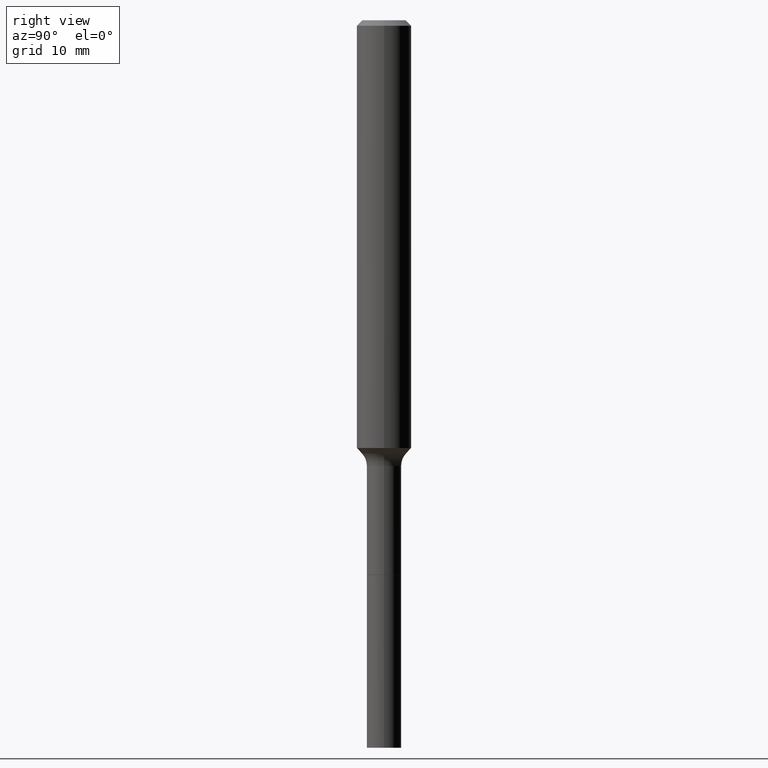
[diagram: clean part render]
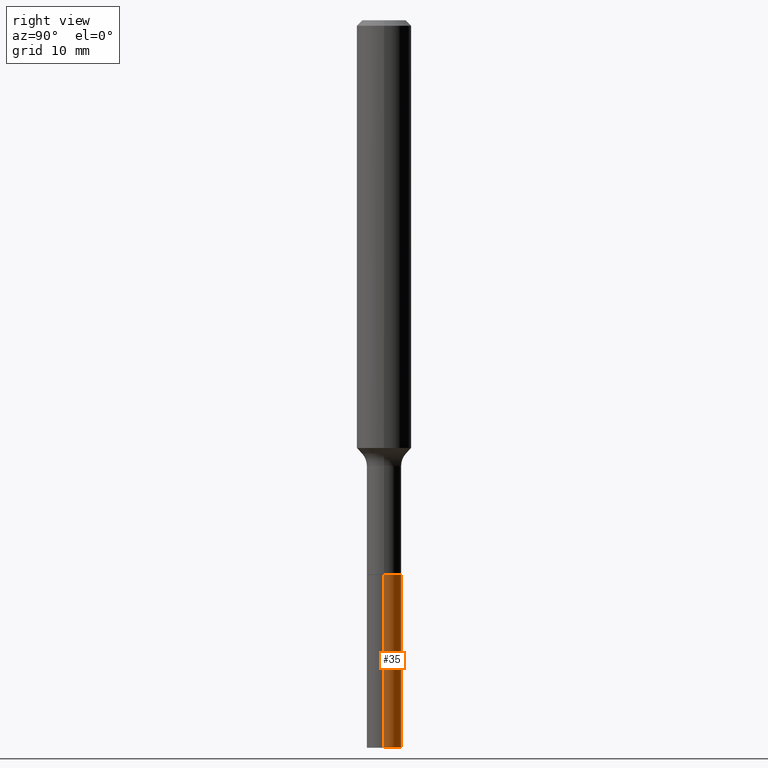
[diagram: same view with one face highlighted and labeled with its STEP entity id]
A machine part, right view. The second image highlights one B-rep face of the part: STEP entity #35.
In plain terms, the highlighted cylindrical surface (edge-blend (fillet) strip) has radius 1.8999 mm, axis along (-0, 0, 1).
Its self-contained STEP definition (entity closure, byte-faithful):
#3 = EDGE_CURVE ( 'NONE', #36, #151, #460, .T. ) ;
#35 = ADVANCED_FACE ( 'NONE', ( #92 ), #237, .T. ) ;
#36 = VERTEX_POINT ( 'NONE', #248 ) ;
#42 = CARTESIAN_POINT ( 'NONE',  ( -0.07480000000000010252, -7.853655617017142483E-15, -2.401600000000000179 ) ) ;
#90 = DIRECTION ( 'NONE',  ( -2.445468806185136877E-29, 3.491481338843145188E-15, 1.000000000000000000 ) ) ;
#92 = FACE_OUTER_BOUND ( 'NONE', #473, .T. ) ;
#96 = DIRECTION ( 'NONE',  ( -2.445468806185136597E-29, 3.491481338843145583E-15, 1.000000000000000000 ) ) ;
#98 = DIRECTION ( 'NONE',  ( -2.445468806185136597E-29, 3.491481338843145583E-15, 1.000000000000000000 ) ) ;
#151 = VERTEX_POINT ( 'NONE', #252 ) ;
#164 = AXIS2_PLACEMENT_3D ( 'NONE', #208, #96, #403 ) ;
#174 = CARTESIAN_POINT ( 'NONE',  ( 5.873037884934224349E-29, -8.385141583365698841E-15, -2.401600000000000179 ) ) ;
#187 = EDGE_CURVE ( 'NONE', #487, #36, #449, .T. ) ;
#188 = CARTESIAN_POINT ( 'NONE',  ( -0.07480000000000019966, -9.159469637744476062E-15, -3.149600000000000399 ) ) ;
#208 = CARTESIAN_POINT ( 'NONE',  ( 5.873037884934224349E-29, -8.385141583365698841E-15, -2.401600000000000179 ) ) ;
#225 = AXIS2_PLACEMENT_3D ( 'NONE', #295, #98, #256 ) ;
#237 = CYLINDRICAL_SURFACE ( 'NONE', #348, 0.07480000000000010252 ) ;
#248 = CARTESIAN_POINT ( 'NONE',  ( 0.07480000000000000537, -8.907467191656631641E-15, -2.401600000000000179 ) ) ;
#252 = CARTESIAN_POINT ( 'NONE',  ( -0.07480000000000000537, -9.159469637744477640E-15, -2.401600000000000179 ) ) ;
#256 = DIRECTION ( 'NONE',  ( 1.000000000000000000, -6.982962677686256455E-15, 0.000000000000000000 ) ) ;
#270 = ORIENTED_EDGE ( 'NONE', *, *, #376, .T. ) ;
#274 = LINE ( 'NONE', #42, #454 ) ;
#288 = DIRECTION ( 'NONE',  ( -2.445468806185136877E-29, 3.491481338843145188E-15, 1.000000000000000000 ) ) ;
#295 = CARTESIAN_POINT ( 'NONE',  ( 7.702248551960706711E-29, -1.099676962482037231E-14, -3.149600000000000399 ) ) ;
#296 = EDGE_CURVE ( 'NONE', #487, #307, #474, .T. ) ;
#307 = VERTEX_POINT ( 'NONE', #188 ) ;
#322 = DIRECTION ( 'NONE',  ( -2.445468806185136597E-29, 3.491481338843145583E-15, 1.000000000000000000 ) ) ;
#346 = ORIENTED_EDGE ( 'NONE', *, *, #296, .T. ) ;
#348 = AXIS2_PLACEMENT_3D ( 'NONE', #174, #322, #440 ) ;
#366 = VECTOR ( 'NONE', #288, 39.37007874015748143 ) ;
#376 = EDGE_CURVE ( 'NONE', #307, #151, #274, .T. ) ;
#392 = CARTESIAN_POINT ( 'NONE',  ( 0.07480000000000019966, -1.151909523311130511E-14, -3.149600000000000399 ) ) ;
#403 = DIRECTION ( 'NONE',  ( 1.000000000000000000, -6.982962677686261977E-15, 0.000000000000000000 ) ) ;
#427 = ORIENTED_EDGE ( 'NONE', *, *, #187, .F. ) ;
#431 = ORIENTED_EDGE ( 'NONE', *, *, #3, .F. ) ;
#440 = DIRECTION ( 'NONE',  ( 1.000000000000000000, -6.982962677686278543E-15, 0.000000000000000000 ) ) ;
#449 = LINE ( 'NONE', #458, #366 ) ;
#454 = VECTOR ( 'NONE', #90, 39.37007874015748143 ) ;
#458 = CARTESIAN_POINT ( 'NONE',  ( 0.07480000000000010252, -8.907467191656633219E-15, -2.401600000000000179 ) ) ;
#460 = CIRCLE ( 'NONE', #164, 0.07480000000000000537 ) ;
#473 = EDGE_LOOP ( 'NONE', ( #346, #270, #431, #427 ) ) ;
#474 = CIRCLE ( 'NONE', #225, 0.07480000000000019966 ) ;
#487 = VERTEX_POINT ( 'NONE', #392 ) ;